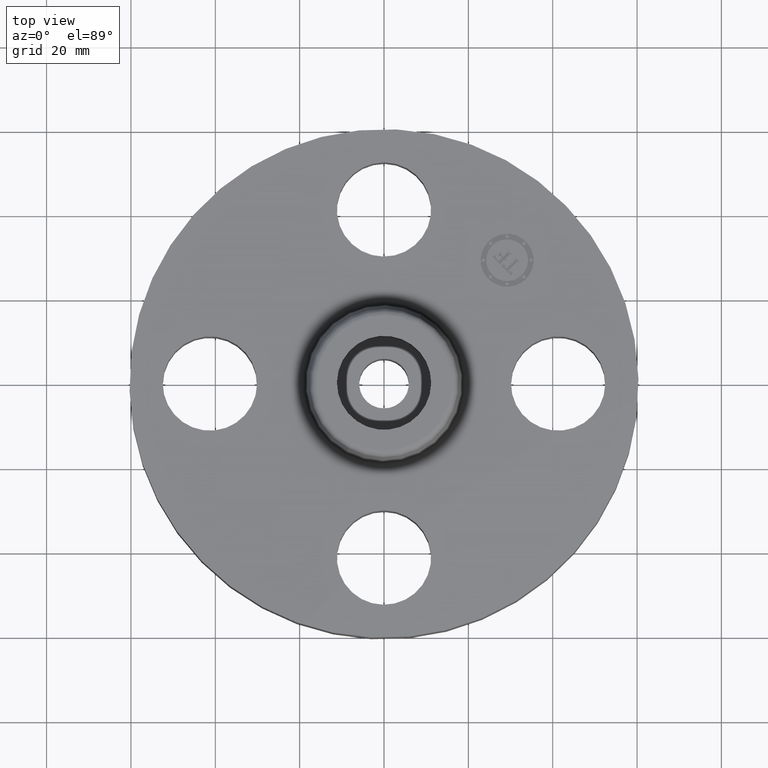
[diagram: clean part render]
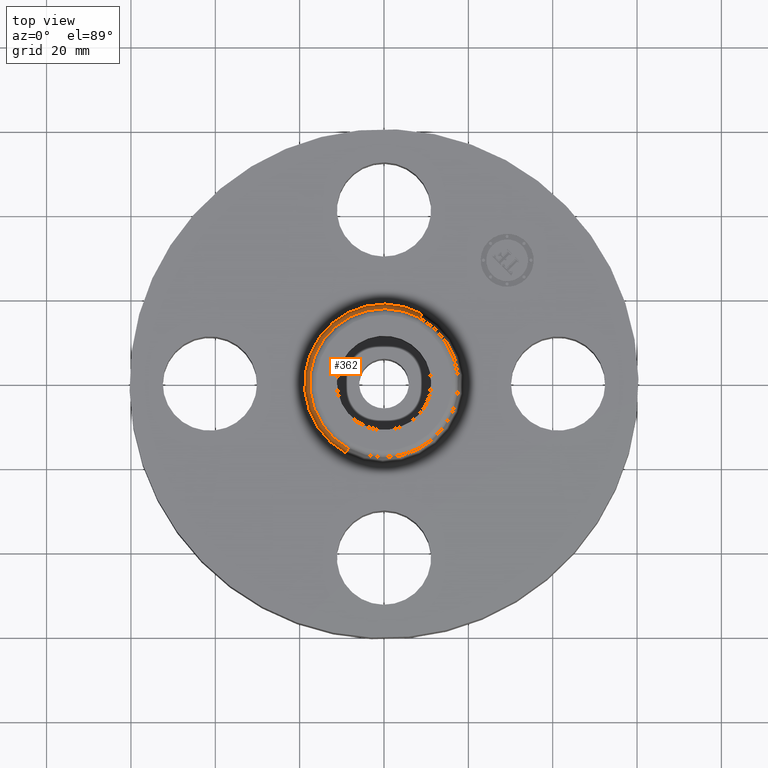
[diagram: same view with one face highlighted and labeled with its STEP entity id]
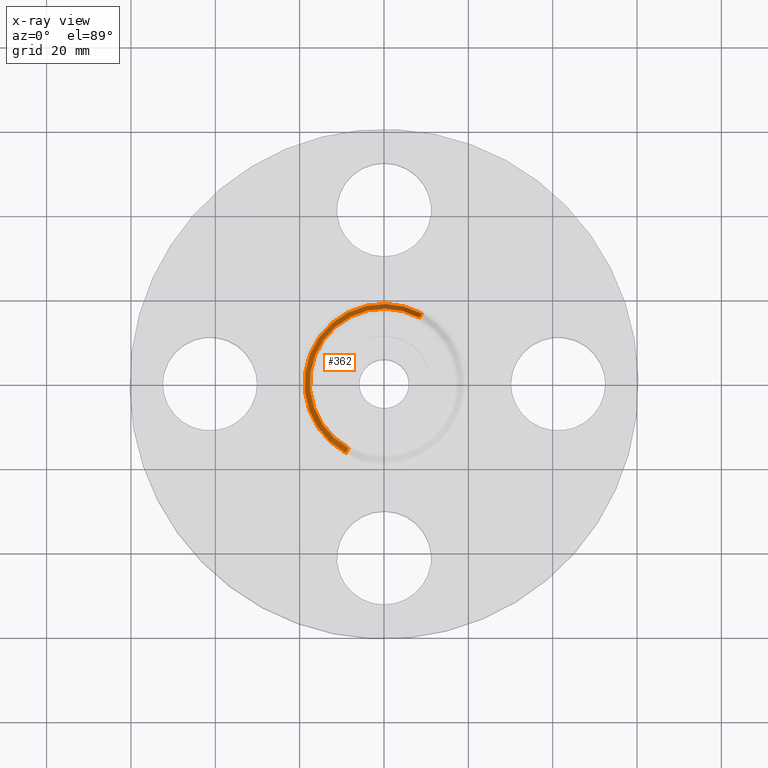
[diagram: x-ray of the same camera — body ghosted, the highlighted face saturated]
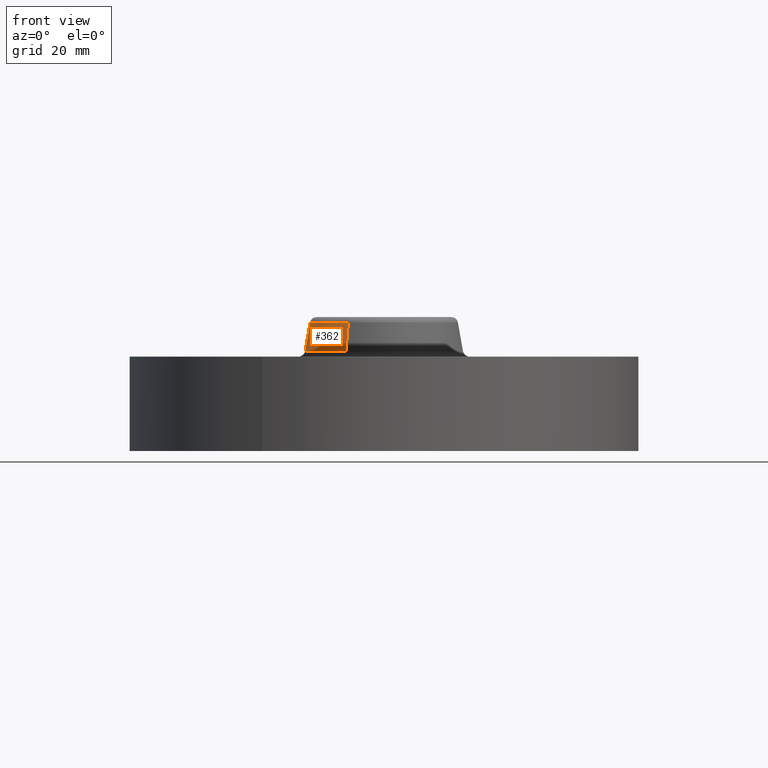
[diagram: same view with one face highlighted and labeled with its STEP entity id]
A machine part, top view. The second image highlights one B-rep face of the part: STEP entity #362.
The next image is the same camera in x-ray: the body ghosted, the highlighted face saturated — about 0% of this face is hidden behind the body in this view.
A second angle (front view) of the same face is appended — the face is thin or edge-on in the first view.
In plain terms, the highlighted conical surface has half-angle 10 deg.
Its self-contained STEP definition (entity closure, byte-faithful):
#310=AXIS2_PLACEMENT_3D('Circle Axis2P3D',#308,#309,$) ;
#323=AXIS2_PLACEMENT_3D('Cone Axis2P3D',#320,#321,#322) ;
#353=AXIS2_PLACEMENT_3D('Circle Axis2P3D',#351,#352,$) ;
#281=CARTESIAN_POINT('Vertex',(0.355377782267,0.650514667009,0.929581109344)) ;
#288=CARTESIAN_POINT('Vertex',(-0.355377782267,-0.650514667009,0.929581109344)) ;
#308=CARTESIAN_POINT('Axis2P3D Location',(0.,0.,0.929581109344)) ;
#320=CARTESIAN_POINT('Axis2P3D Location',(0.,0.,1.20041889066)) ;
#325=CARTESIAN_POINT('Line Origine',(0.343930057281,0.62955974698,1.065)) ;
#329=CARTESIAN_POINT('Vertex',(0.332482332294,0.608604826951,1.20041889066)) ;
#336=CARTESIAN_POINT('Vertex',(-0.332482332294,-0.608604826951,1.20041889066)) ;
#339=CARTESIAN_POINT('Line Origine',(-0.343930057281,-0.62955974698,1.065)) ;
#351=CARTESIAN_POINT('Axis2P3D Location',(0.,0.,1.20041889066)) ;
#309=DIRECTION('Axis2P3D Direction',(0.,0.,-0.0393700787402)) ;
#321=DIRECTION('Axis2P3D Direction',(0.,0.,-0.0393700787402)) ;
#322=DIRECTION('Axis2P3D XDirection',(-0.0188750212049,-0.0345504945626,0.)) ;
#326=DIRECTION('Vector Direction',(0.00327761303565,0.00599963041829,-0.03877195878)) ;
#340=DIRECTION('Vector Direction',(-0.00327761303565,-0.00599963041829,-0.03877195878)) ;
#352=DIRECTION('Axis2P3D Direction',(0.,0.,-0.0393700787402)) ;
#327=VECTOR('Line Direction',#326,0.0393700787402) ;
#341=VECTOR('Line Direction',#340,0.0393700787402) ;
#357=ORIENTED_EDGE('',*,*,#312,.F.) ;
#358=ORIENTED_EDGE('',*,*,#343,.T.) ;
#359=ORIENTED_EDGE('',*,*,#355,.T.) ;
#360=ORIENTED_EDGE('',*,*,#331,.F.) ;
#362=ADVANCED_FACE('PartBody',(#361),#324,.T.) ;
#311=CIRCLE('generated circle',#310,0.741257512693) ;
#354=CIRCLE('generated circle',#353,0.693501504451) ;
#324=CONICAL_SURFACE('Cone',#323,0.693501504451,0.174532925199) ;
#312=EDGE_CURVE('',#289,#282,#311,.T.) ;
#331=EDGE_CURVE('',#282,#330,#328,.F.) ;
#343=EDGE_CURVE('',#289,#337,#342,.F.) ;
#355=EDGE_CURVE('',#337,#330,#354,.T.) ;
#356=EDGE_LOOP('',(#357,#358,#359,#360)) ;
#361=FACE_OUTER_BOUND('',#356,.T.) ;
#328=LINE('Line',#325,#327) ;
#342=LINE('Line',#339,#341) ;
#282=VERTEX_POINT('',#281) ;
#289=VERTEX_POINT('',#288) ;
#330=VERTEX_POINT('',#329) ;
#337=VERTEX_POINT('',#336) ;